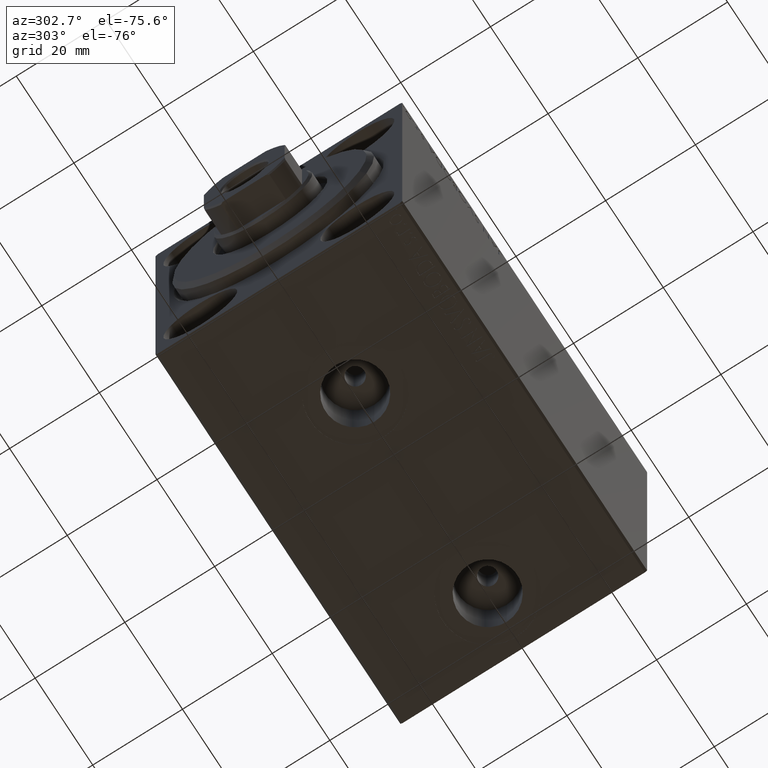
[diagram: clean part render]
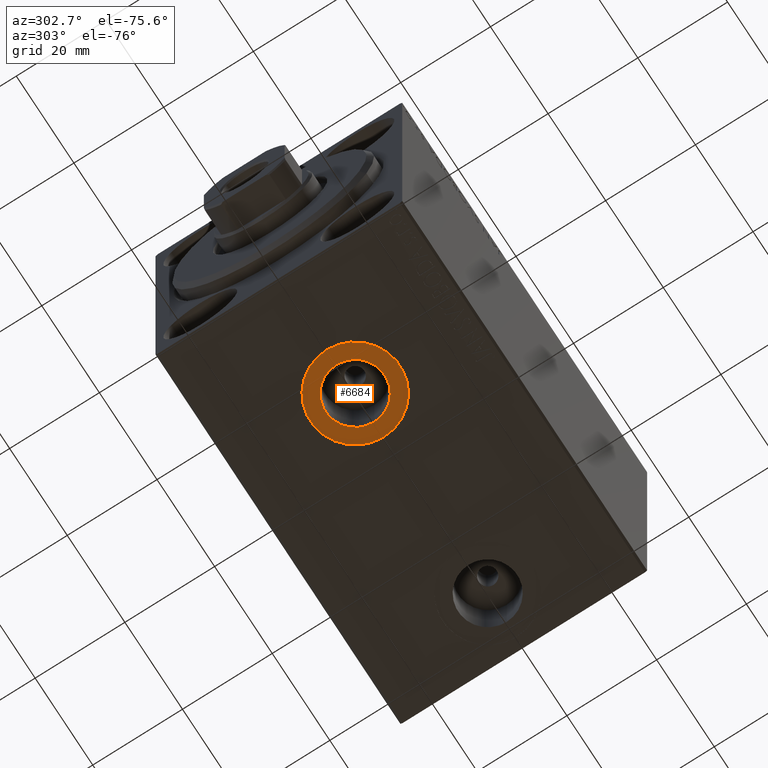
[diagram: same view with one face highlighted and labeled with its STEP entity id]
A machine part, auxiliary view. The second image highlights one B-rep face of the part: STEP entity #6684.
In plain terms, the highlighted planar face has unit normal (0, 0, -1).
Its self-contained STEP definition (entity closure, byte-faithful):
#489 = CIRCLE ( 'NONE', #34822, 6.580000000000002736 ) ;
#1144 = AXIS2_PLACEMENT_3D ( 'NONE', #25886, #16091, #29555 ) ;
#1332 = CIRCLE ( 'NONE', #7185, 9.999999999999998224 ) ;
#2123 = PLANE ( 'NONE',  #1144 ) ;
#2125 = CARTESIAN_POINT ( 'NONE',  ( 26.50000000000000000, -2.726986211408916281E-15, -37.39999999999999858 ) ) ;
#2542 = VERTEX_POINT ( 'NONE', #16819 ) ;
#5129 = AXIS2_PLACEMENT_3D ( 'NONE', #2125, #19966, #27037 ) ;
#5639 = VERTEX_POINT ( 'NONE', #17012 ) ;
#5894 = CARTESIAN_POINT ( 'NONE',  ( 26.50000000000000000, -2.726986211408916281E-15, -37.39999999999999858 ) ) ;
#6645 = CARTESIAN_POINT ( 'NONE',  ( 26.50000000000000000, -2.726986211408916281E-15, -37.39999999999999858 ) ) ;
#6684 = ADVANCED_FACE ( 'NONE', ( #33436, #11945 ), #2123, .T. ) ;
#6799 = CARTESIAN_POINT ( 'NONE',  ( 16.50000000000000000, -2.726986211408916281E-15, -37.39999999999999858 ) ) ;
#7185 = AXIS2_PLACEMENT_3D ( 'NONE', #10780, #37751, #21072 ) ;
#10249 = EDGE_CURVE ( 'NONE', #38428, #5639, #489, .T. ) ;
#10780 = CARTESIAN_POINT ( 'NONE',  ( 26.50000000000000000, -2.726986211408916281E-15, -37.39999999999999858 ) ) ;
#11264 = EDGE_CURVE ( 'NONE', #5639, #38428, #40707, .T. ) ;
#11502 = AXIS2_PLACEMENT_3D ( 'NONE', #5894, #19852, #13434 ) ;
#11945 = FACE_OUTER_BOUND ( 'NONE', #36232, .T. ) ;
#13434 = DIRECTION ( 'NONE',  ( -1.000000000000000000, 0.000000000000000000, 0.000000000000000000 ) ) ;
#13833 = EDGE_CURVE ( 'NONE', #2542, #28671, #1332, .T. ) ;
#16091 = DIRECTION ( 'NONE',  ( 0.000000000000000000, 0.000000000000000000, -1.000000000000000000 ) ) ;
#16819 = CARTESIAN_POINT ( 'NONE',  ( 36.50000000000000000, -1.502339412261563813E-15, -37.39999999999999858 ) ) ;
#17012 = CARTESIAN_POINT ( 'NONE',  ( 33.07999999999999829, -1.921168617569957634E-15, -37.39999999999999858 ) ) ;
#18345 = ORIENTED_EDGE ( 'NONE', *, *, #13833, .T. ) ;
#18788 = ORIENTED_EDGE ( 'NONE', *, *, #11264, .F. ) ;
#18857 = EDGE_CURVE ( 'NONE', #28671, #2542, #33599, .T. ) ;
#19852 = DIRECTION ( 'NONE',  ( 0.000000000000000000, 0.000000000000000000, -1.000000000000000000 ) ) ;
#19966 = DIRECTION ( 'NONE',  ( 0.000000000000000000, 0.000000000000000000, -1.000000000000000000 ) ) ;
#21072 = DIRECTION ( 'NONE',  ( -1.000000000000000000, 0.000000000000000000, 0.000000000000000000 ) ) ;
#22492 = DIRECTION ( 'NONE',  ( -1.000000000000000000, 0.000000000000000000, 0.000000000000000000 ) ) ;
#23902 = EDGE_LOOP ( 'NONE', ( #41332, #18788 ) ) ;
#25886 = CARTESIAN_POINT ( 'NONE',  ( 0.000000000000000000, 0.000000000000000000, -37.39999999999999858 ) ) ;
#27037 = DIRECTION ( 'NONE',  ( -1.000000000000000000, 0.000000000000000000, 0.000000000000000000 ) ) ;
#28671 = VERTEX_POINT ( 'NONE', #6799 ) ;
#29555 = DIRECTION ( 'NONE',  ( -1.000000000000000000, 0.000000000000000000, -0.000000000000000000 ) ) ;
#30240 = ORIENTED_EDGE ( 'NONE', *, *, #18857, .T. ) ;
#33436 = FACE_BOUND ( 'NONE', #23902, .T. ) ;
#33599 = CIRCLE ( 'NONE', #5129, 9.999999999999998224 ) ;
#34822 = AXIS2_PLACEMENT_3D ( 'NONE', #6645, #43278, #22492 ) ;
#36232 = EDGE_LOOP ( 'NONE', ( #30240, #18345 ) ) ;
#37751 = DIRECTION ( 'NONE',  ( 0.000000000000000000, 0.000000000000000000, -1.000000000000000000 ) ) ;
#38428 = VERTEX_POINT ( 'NONE', #41168 ) ;
#40707 = CIRCLE ( 'NONE', #11502, 6.580000000000002736 ) ;
#41168 = CARTESIAN_POINT ( 'NONE',  ( 19.91999999999999815, -2.726986211408916281E-15, -37.39999999999999858 ) ) ;
#41332 = ORIENTED_EDGE ( 'NONE', *, *, #10249, .F. ) ;
#43278 = DIRECTION ( 'NONE',  ( 0.000000000000000000, 0.000000000000000000, -1.000000000000000000 ) ) ;